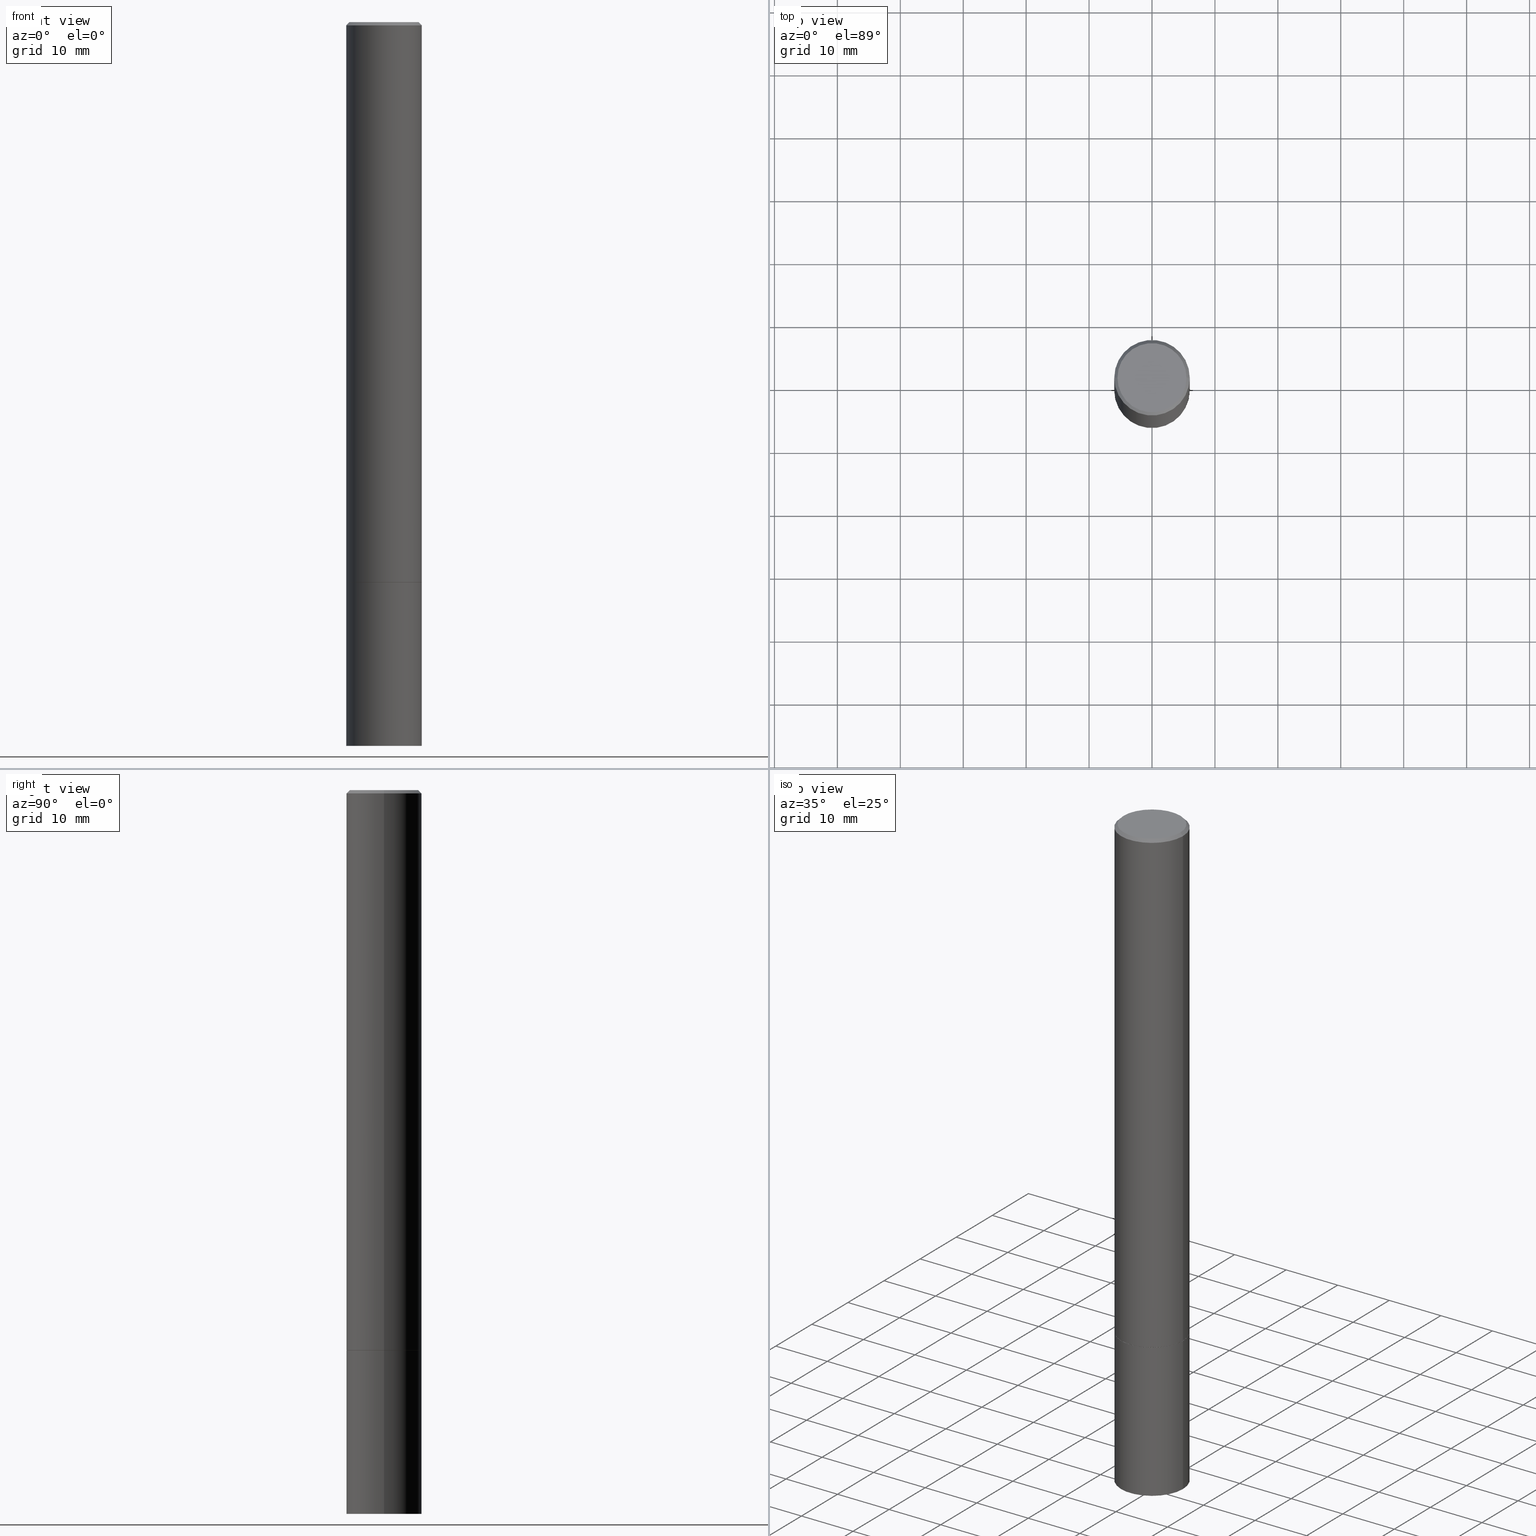
[diagram: canonical four-view strip — front | top / right | iso, engineering-drawing reading convention]
A machine part, canonical four-view strip (front | top / right | iso — engineering-drawing reading convention). The complete STEP part file that produces these views, byte-faithful:
ISO-10303-21;
HEADER;
FILE_DESCRIPTION (( 'STEP AP203' ),
    '1' );
FILE_NAME ('46143.STEP',
    '2024-02-28T10:11:00',
    ( '' ),
    ( '' ),
    'SwSTEP 2.0',
    'SolidWorks 2023',
    '' );
FILE_SCHEMA (( 'CONFIG_CONTROL_DESIGN' ));
ENDSEC;

DATA;
#1 = APPROVAL_DATE_TIME ( #280, #300 ) ;
#2 = EDGE_LOOP ( 'NONE', ( #341, #342, #78, #170 ) ) ;
#3 = APPLICATION_PROTOCOL_DEFINITION ( 'international standard', 'config_control_design', 1994, #32 ) ;
#4 = DATE_AND_TIME ( #35, #288 ) ;
#5 = EDGE_CURVE ( 'NONE', #55, #123, #211, .T. ) ;
#6 = AXIS2_PLACEMENT_3D ( 'NONE', #263, #88, #339 ) ;
#7 = LINE ( 'NONE', #111, #307 ) ;
#8 = PERSON_AND_ORGANIZATION ( #62, #16 ) ;
#9 = AXIS2_PLACEMENT_3D ( 'NONE', #294, #138, #312 ) ;
#10 = FACE_OUTER_BOUND ( 'NONE', #305, .T. ) ;
#11 = DIRECTION ( 'NONE',  ( 1.000000000000000000, -6.982962677686266711E-15, 4.876176775795936353E-29 ) ) ;
#12 = EDGE_CURVE ( 'NONE', #55, #101, #13, .T. ) ;
#13 = CIRCLE ( 'NONE', #124, 0.2161999999999995037 ) ;
#14 = CIRCLE ( 'NONE', #133, 0.2361999999999999933 ) ;
#15 = CARTESIAN_POINT ( 'NONE',  ( -0.2361999999999999933, -1.234278881866094703E-14, -4.527599999999999625 ) ) ;
#16 = ORGANIZATION ( 'UNSPECIFIED', 'UNSPECIFIED', '' ) ;
#17 = LOCAL_TIME ( 5, 11, 0.000000000000000000, #96 ) ;
#18 = CIRCLE ( 'NONE', #33, 0.2351999999999999924 ) ;
#19 = DIRECTION ( 'NONE',  ( 2.438088387897960049E-29, -3.491481338843145188E-15, -1.000000000000000000 ) ) ;
#20 = PRODUCT_DEFINITION_SHAPE ( 'NONE', 'NONE',  #217 ) ;
#21 = DIRECTION ( 'NONE',  ( -2.445468806185136877E-29, 3.491481338843145188E-15, 1.000000000000000000 ) ) ;
#22 = EDGE_CURVE ( 'NONE', #337, #127, #65, .T. ) ;
#23 = ORIENTED_EDGE ( 'NONE', *, *, #5, .T. ) ;
#24 = EDGE_LOOP ( 'NONE', ( #275, #115, #252, #57 ) ) ;
#25 = EDGE_CURVE ( 'NONE', #357, #364, #7, .T. ) ;
#26 = AXIS2_PLACEMENT_3D ( 'NONE', #190, #330, #298 ) ;
#27 = ORIENTED_EDGE ( 'NONE', *, *, #247, .F. ) ;
#28 = CARTESIAN_POINT ( 'NONE',  ( 1.107210456688382298E-28, -1.580803090974622389E-14, -4.527599999999999625 ) ) ;
#29 = EDGE_LOOP ( 'NONE', ( #274, #135, #60, #301 ) ) ;
#30 = CARTESIAN_POINT ( 'NONE',  ( 8.568922696872717137E-29, -1.223415061130638137E-14, -3.503999999999999559 ) ) ;
#31 = PERSON_AND_ORGANIZATION ( #62, #16 ) ;
#32 = APPLICATION_CONTEXT ( 'configuration controlled 3d designs of mechanical parts and assemblies' ) ;
#33 = AXIS2_PLACEMENT_3D ( 'NONE', #249, #195, #333 ) ;
#34 = DIRECTION ( 'NONE',  ( 1.000000000000000000, -6.982962677686268288E-15, 0.000000000000000000 ) ) ;
#35 = CALENDAR_DATE ( 2024, 28, 2 ) ;
#36 = ADVANCED_FACE ( 'NONE', ( #69 ), #208, .T. ) ;
#37 = APPROVAL_ROLE ( '' ) ;
#38 = CARTESIAN_POINT ( 'NONE',  ( 0.000000000000000000, 0.000000000000000000, 0.000000000000000000 ) ) ;
#39 = AXIS2_PLACEMENT_3D ( 'NONE', #180, #142, #265 ) ;
#40 = CARTESIAN_POINT ( 'NONE',  ( -0.2361999999999995214, 1.579546157692629677E-15, -0.02000000000000006287 ) ) ;
#41 = FACE_OUTER_BOUND ( 'NONE', #299, .T. ) ;
#42 = LOCAL_TIME ( 5, 11, 0.000000000000000000, #141 ) ;
#43 = LINE ( 'NONE', #97, #351 ) ;
#44 = CONICAL_SURFACE ( 'NONE', #277, 0.2351999999999999924, 0.7853981633975507526 ) ;
#45 = DIRECTION ( 'NONE',  ( -2.445468806185136877E-29, 3.491481338843145188E-15, 1.000000000000000000 ) ) ;
#46 = CC_DESIGN_PERSON_AND_ORGANIZATION_ASSIGNMENT ( #8, #108, ( #217 ) ) ;
#47 = CYLINDRICAL_SURFACE ( 'NONE', #201, 0.2361999999999999933 ) ;
#48 = DIRECTION ( 'NONE',  ( 1.000000000000000000, -6.982962677686265133E-15, 0.000000000000000000 ) ) ;
#49 = DIRECTION ( 'NONE',  ( 0.7071067811865467956, -7.319954787623254468E-15, -0.7071067811865482389 ) ) ;
#50 = CLOSED_SHELL ( 'NONE', ( #347, #233, #191, #71 ) ) ;
#51 = FACE_OUTER_BOUND ( 'NONE', #221, .T. ) ;
#52 = ORIENTED_EDGE ( 'NONE', *, *, #25, .F. ) ;
#53 = UNCERTAINTY_MEASURE_WITH_UNIT (LENGTH_MEASURE( 1.000000000000000082E-05 ), #314, 'distance_accuracy_value', 'NONE');
#54 = LINE ( 'NONE', #79, #205 ) ;
#55 = VERTEX_POINT ( 'NONE', #353 ) ;
#56 = FACE_OUTER_BOUND ( 'NONE', #125, .T. ) ;
#57 = ORIENTED_EDGE ( 'NONE', *, *, #268, .F. ) ;
#58 = APPROVAL_ROLE ( '' ) ;
#59 = CARTESIAN_POINT ( 'NONE',  ( 1.649375784469581525E-15, 0.2361999999999877808, -3.504000000000000448 ) ) ;
#60 = ORIENTED_EDGE ( 'NONE', *, *, #247, .T. ) ;
#61 = PERSON_AND_ORGANIZATION ( #62, #16 ) ;
#62 = PERSON ( 'UNSPECIFIED', 'UNSPECIFIED', 'UNSPECIFIED', ('UNSPECIFIED'), ('UNSPECIFIED'), ('UNSPECIFIED') ) ;
#63 = SECURITY_CLASSIFICATION_LEVEL ( 'unclassified' ) ;
#64 = DIRECTION ( 'NONE',  ( 1.000000000000000000, -6.982962677686265133E-15, 0.000000000000000000 ) ) ;
#65 = CIRCLE ( 'NONE', #269, 0.2351999999999999924 ) ;
#66 = FACE_OUTER_BOUND ( 'NONE', #279, .T. ) ;
#67 = CARTESIAN_POINT ( 'NONE',  ( 0.2351999999999999924, -1.387654343309819188E-14, -3.503999999999999559 ) ) ;
#68 = DIRECTION ( 'NONE',  ( 1.000000000000000000, -6.982962677686265133E-15, 0.000000000000000000 ) ) ;
#69 = FACE_OUTER_BOUND ( 'NONE', #24, .T. ) ;
#70 = PRODUCT_DEFINITION_FORMATION_WITH_SPECIFIED_SOURCE ( 'ANY', '', #271, .NOT_KNOWN. ) ;
#71 = ADVANCED_FACE ( 'NONE', ( #267 ), #47, .T. ) ;
#72 = ADVANCED_FACE ( 'NONE', ( #95 ), #213, .T. ) ;
#73 = VECTOR ( 'NONE', #317, 39.37007874015748143 ) ;
#74 = DIRECTION ( 'NONE',  ( -2.445468806185136597E-29, 3.491481338843145583E-15, 1.000000000000000000 ) ) ;
#75 = CARTESIAN_POINT ( 'NONE',  ( 1.649375784469606571E-15, 0.2361999999999841726, -4.527600000000000513 ) ) ;
#76 = CC_DESIGN_PERSON_AND_ORGANIZATION_ASSIGNMENT ( #174, #284, ( #157 ) ) ;
#77 = ORIENTED_EDGE ( 'NONE', *, *, #22, .F. ) ;
#78 = ORIENTED_EDGE ( 'NONE', *, *, #182, .T. ) ;
#79 = CARTESIAN_POINT ( 'NONE',  ( 0.2361999999999999933, -1.649375784469496131E-15, 1.151752954443000088E-29 ) ) ;
#80 = ORIENTED_EDGE ( 'NONE', *, *, #182, .F. ) ;
#81 = CALENDAR_DATE ( 2024, 28, 2 ) ;
#82 = VERTEX_POINT ( 'NONE', #204 ) ;
#83 = CONICAL_SURFACE ( 'NONE', #322, 0.2351999999999999924, 0.7853981633975507526 ) ;
#84 = AXIS2_PLACEMENT_3D ( 'NONE', #75, #192, #224 ) ;
#85 = APPROVAL_STATUS ( 'not_yet_approved' ) ;
#86 = DATE_TIME_ROLE ( 'classification_date' ) ;
#87 = AXIS2_PLACEMENT_3D ( 'NONE', #363, #169, #281 ) ;
#88 = DIRECTION ( 'NONE',  ( 0.000000000000000000, 0.000000000000000000, 1.000000000000000000 ) ) ;
#89 = CARTESIAN_POINT ( 'NONE',  ( -0.2361999999999997712, 1.678301941865355014E-15, -1.161852468318207636E-29 ) ) ;
#90 = CARTESIAN_POINT ( 'NONE',  ( 0.2161999999999995037, -1.586759460484348635E-15, 4.268512490111238857E-18 ) ) ;
#91 = CARTESIAN_POINT ( 'NONE',  ( 0.2361999999999995214, -1.690279253850495418E-15, -0.02000000000000006287 ) ) ;
#92 = DIRECTION ( 'NONE',  ( -0.7071067811865467956, 2.468850131082249172E-15, -0.7071067811865482389 ) ) ;
#93 = AXIS2_PLACEMENT_3D ( 'NONE', #216, #325, #350 ) ;
#94 = DIRECTION ( 'NONE',  ( -2.445468806185136597E-29, 3.491481338843145583E-15, 1.000000000000000000 ) ) ;
#95 = FACE_OUTER_BOUND ( 'NONE', #310, .T. ) ;
#96 = COORDINATED_UNIVERSAL_TIME_OFFSET ( 5, 0, .BEHIND. ) ;
#97 = CARTESIAN_POINT ( 'NONE',  ( -0.2361999999999999933, 1.678301941865356591E-15, -1.161852468318208757E-29 ) ) ;
#98 = ORIENTED_EDGE ( 'NONE', *, *, #172, .F. ) ;
#99 = ADVANCED_FACE ( 'NONE', ( #66 ), #207, .F. ) ;
#100 = DIRECTION ( 'NONE',  ( -2.445468806185136597E-29, 3.491481338843145583E-15, 1.000000000000000000 ) ) ;
#101 = VERTEX_POINT ( 'NONE', #90 ) ;
#102 = CC_DESIGN_PERSON_AND_ORGANIZATION_ASSIGNMENT ( #345, #311, ( #70 ) ) ;
#103 = VECTOR ( 'NONE', #49, 39.37007874015748143 ) ;
#104 = DIRECTION ( 'NONE',  ( -2.445468806185136597E-29, 3.491481338843145583E-15, 1.000000000000000000 ) ) ;
#105 = ORIENTED_EDGE ( 'NONE', *, *, #117, .T. ) ;
#106 = ORIENTED_EDGE ( 'NONE', *, *, #12, .T. ) ;
#107 = CC_DESIGN_PERSON_AND_ORGANIZATION_ASSIGNMENT ( #316, #258, ( #271 ) ) ;
#108 = PERSON_AND_ORGANIZATION_ROLE ( 'creator' ) ;
#109 = DIRECTION ( 'NONE',  ( -2.445468806185136597E-29, 3.491481338843145583E-15, 1.000000000000000000 ) ) ;
#110 = CIRCLE ( 'NONE', #297, 0.2361999999999999933 ) ;
#111 = CARTESIAN_POINT ( 'NONE',  ( 0.2361999999999997712, -1.649375784469494553E-15, 1.151752954442998827E-29 ) ) ;
#112 = DIRECTION ( 'NONE',  ( -2.445468806185136877E-29, 3.491481338843145188E-15, 1.000000000000000000 ) ) ;
#113 = AXIS2_PLACEMENT_3D ( 'NONE', #38, #145, #146 ) ;
#114 = COORDINATED_UNIVERSAL_TIME_OFFSET ( 5, 0, .BEHIND. ) ;
#115 = ORIENTED_EDGE ( 'NONE', *, *, #360, .T. ) ;
#116 = EDGE_CURVE ( 'NONE', #359, #163, #110, .T. ) ;
#117 = EDGE_CURVE ( 'NONE', #136, #123, #184, .T. ) ;
#118 = CARTESIAN_POINT ( 'NONE',  ( 8.566477228066533777E-29, -1.223065912996753836E-14, -3.502999999999999670 ) ) ;
#119 = CC_DESIGN_APPROVAL ( #197, ( #217 ) ) ;
#120 = CIRCLE ( 'NONE', #349, 0.2361999999999999933 ) ;
#121 = CARTESIAN_POINT ( 'NONE',  ( 0.2361999999999995214, -1.690279253850495418E-15, -0.02000000000000006287 ) ) ;
#122 = APPROVAL_PERSON_ORGANIZATION ( #199, #300, #58 ) ;
#123 = VERTEX_POINT ( 'NONE', #40 ) ;
#124 = AXIS2_PLACEMENT_3D ( 'NONE', #177, #181, #319 ) ;
#125 = EDGE_LOOP ( 'NONE', ( #98, #140, #23, #229 ) ) ;
#126 = DIRECTION ( 'NONE',  ( 1.000000000000000000, -6.982962677686268288E-15, 0.000000000000000000 ) ) ;
#127 = VERTEX_POINT ( 'NONE', #309 ) ;
#128 = DIRECTION ( 'NONE',  ( -2.445468806185136597E-29, 3.491481338843145583E-15, 1.000000000000000000 ) ) ;
#129 = ORIENTED_EDGE ( 'NONE', *, *, #242, .F. ) ;
#130 = LINE ( 'NONE', #67, #315 ) ;
#131 = AXIS2_PLACEMENT_3D ( 'NONE', #232, #225, #218 ) ;
#132 = ORIENTED_EDGE ( 'NONE', *, *, #183, .T. ) ;
#133 = AXIS2_PLACEMENT_3D ( 'NONE', #118, #241, #185 ) ;
#134 =( NAMED_UNIT ( * ) PLANE_ANGLE_UNIT ( ) SI_UNIT ( $, .RADIAN. ) );
#135 = ORIENTED_EDGE ( 'NONE', *, *, #172, .T. ) ;
#136 = VERTEX_POINT ( 'NONE', #239 ) ;
#137 = PERSON_AND_ORGANIZATION_ROLE ( 'creator' ) ;
#138 = DIRECTION ( 'NONE',  ( -2.445468806185136597E-29, 3.491481338843145583E-15, 1.000000000000000000 ) ) ;
#139 = CONICAL_SURFACE ( 'NONE', #131, 0.2361999999999995214, 0.7853981633974472798 ) ;
#140 = ORIENTED_EDGE ( 'NONE', *, *, #12, .F. ) ;
#141 = COORDINATED_UNIVERSAL_TIME_OFFSET ( 5, 0, .BEHIND. ) ;
#142 = DIRECTION ( 'NONE',  ( 2.438088387897960049E-29, -3.491481338843145188E-15, -1.000000000000000000 ) ) ;
#143 = DIRECTION ( 'NONE',  ( 1.000000000000000000, -6.982962677686265922E-15, 4.876176775795935793E-29 ) ) ;
#144 = COORDINATED_UNIVERSAL_TIME_OFFSET ( 5, 0, .BEHIND. ) ;
#145 = DIRECTION ( 'NONE',  ( -2.445468806185136597E-29, 3.491481338843145583E-15, 1.000000000000000000 ) ) ;
#146 = DIRECTION ( 'NONE',  ( 1.000000000000000000, -6.982962677686266711E-15, 4.876176775795935232E-29 ) ) ;
#147 = ADVANCED_BREP_SHAPE_REPRESENTATION ( '46143', ( #175, #171, #6 ), #236 ) ;
#148 = DATE_AND_TIME ( #151, #17 ) ;
#149 =( LENGTH_UNIT ( ) NAMED_UNIT ( * ) SI_UNIT ( $, .METRE. ) );
#150 = CC_DESIGN_SECURITY_CLASSIFICATION ( #157, ( #70 ) ) ;
#151 = CALENDAR_DATE ( 2024, 28, 2 ) ;
#152 = CLOSED_SHELL ( 'NONE', ( #304, #72, #327, #264, #36, #323, #162, #99 ) ) ;
#153 = EDGE_CURVE ( 'NONE', #101, #55, #290, .T. ) ;
#154 = AXIS2_PLACEMENT_3D ( 'NONE', #292, #94, #11 ) ;
#155 = APPROVAL_DATE_TIME ( #148, #187 ) ;
#156 = CARTESIAN_POINT ( 'NONE',  ( 0.2361999999999999933, -1.388003491443703489E-14, -3.502999999999999670 ) ) ;
#157 = SECURITY_CLASSIFICATION ( '', '', #63 ) ;
#158 = FACE_OUTER_BOUND ( 'NONE', #2, .T. ) ;
#159 = CARTESIAN_POINT ( 'NONE',  ( 8.568922696872717137E-29, -1.223415061130638137E-14, -3.503999999999999559 ) ) ;
#160 = VERTEX_POINT ( 'NONE', #295 ) ;
#161 = CARTESIAN_POINT ( 'NONE',  ( 4.890937612370288923E-31, -6.982962677686312563E-17, -0.02000000000000006287 ) ) ;
#162 = ADVANCED_FACE ( 'NONE', ( #41 ), #318, .F. ) ;
#163 = VERTEX_POINT ( 'NONE', #329 ) ;
#164 = DESIGN_CONTEXT ( 'detailed design', #32, 'design' ) ;
#165 = ORIENTED_EDGE ( 'NONE', *, *, #116, .T. ) ;
#166 = ORIENTED_EDGE ( 'NONE', *, *, #335, .T. ) ;
#167 = ORIENTED_EDGE ( 'NONE', *, *, #183, .F. ) ;
#168 = CALENDAR_DATE ( 2024, 28, 2 ) ;
#169 = DIRECTION ( 'NONE',  ( 2.445468806185136597E-29, -3.491481338843145583E-15, -1.000000000000000000 ) ) ;
#170 = ORIENTED_EDGE ( 'NONE', *, *, #360, .F. ) ;
#171 = MANIFOLD_SOLID_BREP ( 'Body-Move/Copy2[2]', #152 ) ;
#172 = EDGE_CURVE ( 'NONE', #101, #364, #230, .T. ) ;
#173 = ORIENTED_EDGE ( 'NONE', *, *, #237, .T. ) ;
#174 = PERSON_AND_ORGANIZATION ( #62, #16 ) ;
#175 = MANIFOLD_SOLID_BREP ( 'Body-Move/Copy2[1]', #50 ) ;
#176 = VECTOR ( 'NONE', #92, 39.37007874015748143 ) ;
#177 = CARTESIAN_POINT ( 'NONE',  ( -1.043851414335219820E-46, 1.490343170380447200E-32, 4.268512490100411279E-18 ) ) ;
#178 = CC_DESIGN_PERSON_AND_ORGANIZATION_ASSIGNMENT ( #61, #137, ( #70 ) ) ;
#179 = PERSON_AND_ORGANIZATION ( #62, #16 ) ;
#180 = CARTESIAN_POINT ( 'NONE',  ( 1.509716530915767168E-15, 0.2161999999999995037, -7.527240092128361316E-16 ) ) ;
#181 = DIRECTION ( 'NONE',  ( -2.445468806185136597E-29, 3.491481338843145583E-15, 1.000000000000000000 ) ) ;
#182 = EDGE_CURVE ( 'NONE', #127, #357, #130, .T. ) ;
#183 = EDGE_CURVE ( 'NONE', #127, #337, #18, .T. ) ;
#184 = LINE ( 'NONE', #89, #73 ) ;
#185 = DIRECTION ( 'NONE',  ( 1.000000000000000000, -6.982962677686265133E-15, 0.000000000000000000 ) ) ;
#186 = CARTESIAN_POINT ( 'NONE',  ( 0.000000000000000000, 0.000000000000000000, 0.000000000000000000 ) ) ;
#187 = APPROVAL ( #286, 'UNSPECIFIED' ) ;
#188 = DIRECTION ( 'NONE',  ( 1.000000000000000000, -6.982962677686266711E-15, 4.876176775795936353E-29 ) ) ;
#189 = AXIS2_PLACEMENT_3D ( 'NONE', #328, #100, #64 ) ;
#190 = CARTESIAN_POINT ( 'NONE',  ( 8.568922696872717137E-29, -1.223415061130638137E-14, -3.503999999999999559 ) ) ;
#191 = ADVANCED_FACE ( 'NONE', ( #220 ), #365, .F. ) ;
#192 = DIRECTION ( 'NONE',  ( 2.438088387897960049E-29, -3.491481338843145188E-15, -1.000000000000000000 ) ) ;
#193 = ORIENTED_EDGE ( 'NONE', *, *, #354, .F. ) ;
#194 = ORIENTED_EDGE ( 'NONE', *, *, #215, .T. ) ;
#195 = DIRECTION ( 'NONE',  ( -2.445468806185136597E-29, 3.491481338843145583E-15, 1.000000000000000000 ) ) ;
#196 = EDGE_LOOP ( 'NONE', ( #255, #166 ) ) ;
#197 = APPROVAL ( #85, 'UNSPECIFIED' ) ;
#198 = LINE ( 'NONE', #355, #248 ) ;
#199 = PERSON_AND_ORGANIZATION ( #62, #16 ) ;
#200 = ORIENTED_EDGE ( 'NONE', *, *, #242, .T. ) ;
#201 = AXIS2_PLACEMENT_3D ( 'NONE', #186, #244, #188 ) ;
#202 = APPLICATION_PROTOCOL_DEFINITION ( 'international standard', 'config_control_design', 1994, #344 ) ;
#203 = DATE_AND_TIME ( #81, #289 ) ;
#204 = CARTESIAN_POINT ( 'NONE',  ( 0.2361999999999999933, -1.388352639577587632E-14, -3.503999999999999559 ) ) ;
#205 = VECTOR ( 'NONE', #21, 39.37007874015748143 ) ;
#206 = MECHANICAL_CONTEXT ( 'NONE', #344, 'mechanical' ) ;
#207 = PLANE ( 'NONE',  #39 ) ;
#208 = CYLINDRICAL_SURFACE ( 'NONE', #113, 0.2361999999999997712 ) ;
#209 = DIRECTION ( 'NONE',  ( -2.445468806185136597E-29, 3.491481338843145583E-15, 1.000000000000000000 ) ) ;
#210 = APPROVAL_PERSON_ORGANIZATION ( #31, #197, #37 ) ;
#211 = LINE ( 'NONE', #313, #176 ) ;
#212 = CONICAL_SURFACE ( 'NONE', #87, 0.2361999999999995214, 0.7853981633974472798 ) ;
#213 = CYLINDRICAL_SURFACE ( 'NONE', #9, 0.2361999999999997712 ) ;
#214 = AXIS2_PLACEMENT_3D ( 'NONE', #219, #338, #143 ) ;
#215 = EDGE_CURVE ( 'NONE', #337, #136, #198, .T. ) ;
#216 = CARTESIAN_POINT ( 'NONE',  ( -1.043851414335219820E-46, 1.490343170380447200E-32, 4.268512490100411279E-18 ) ) ;
#217 = PRODUCT_DEFINITION ( 'UNKNOWN', '', #70, #164 ) ;
#218 = DIRECTION ( 'NONE',  ( -1.000000000000000000, 6.982962677686266711E-15, 0.000000000000000000 ) ) ;
#219 = CARTESIAN_POINT ( 'NONE',  ( 8.568922696872717137E-29, -1.223415061130638137E-14, -3.503999999999999559 ) ) ;
#220 = FACE_OUTER_BOUND ( 'NONE', #196, .T. ) ;
#221 = EDGE_LOOP ( 'NONE', ( #132, #194, #276, #80 ) ) ;
#222 = EDGE_CURVE ( 'NONE', #82, #160, #361, .T. ) ;
#223 = CC_DESIGN_APPROVAL ( #187, ( #157 ) ) ;
#224 = DIRECTION ( 'NONE',  ( -1.000000000000000000, 6.982962677686265922E-15, -4.876176775795935793E-29 ) ) ;
#225 = DIRECTION ( 'NONE',  ( 2.445468806185136597E-29, -3.491481338843145583E-15, -1.000000000000000000 ) ) ;
#226 = DIRECTION ( 'NONE',  ( -1.000000000000000000, 6.982962677686265922E-15, -4.876176775795935793E-29 ) ) ;
#227 = PRODUCT_RELATED_PRODUCT_CATEGORY ( 'detail', '', ( #271 ) ) ;
#228 = DIRECTION ( 'NONE',  ( 1.000000000000000000, -6.982962677686266711E-15, 0.000000000000000000 ) ) ;
#229 = ORIENTED_EDGE ( 'NONE', *, *, #268, .T. ) ;
#230 = LINE ( 'NONE', #91, #103 ) ;
#231 = APPROVAL_PERSON_ORGANIZATION ( #179, #187, #240 ) ;
#232 = CARTESIAN_POINT ( 'NONE',  ( 4.890937612370288923E-31, -6.982962677686312563E-17, -0.02000000000000006287 ) ) ;
#233 = ADVANCED_FACE ( 'NONE', ( #251 ), #336, .T. ) ;
#234 = AXIS2_PLACEMENT_3D ( 'NONE', #161, #104, #340 ) ;
#235 = APPROVAL_STATUS ( 'not_yet_approved' ) ;
#236 =( GEOMETRIC_REPRESENTATION_CONTEXT ( 3 ) GLOBAL_UNCERTAINTY_ASSIGNED_CONTEXT ( ( #53 ) ) GLOBAL_UNIT_ASSIGNED_CONTEXT ( ( #314, #134, #259 ) ) REPRESENTATION_CONTEXT ( 'NONE', 'WORKASPACE' ) );
#237 = EDGE_CURVE ( 'NONE', #163, #82, #54, .T. ) ;
#238 = CARTESIAN_POINT ( 'NONE',  ( 1.107210456688382298E-28, -1.580803090974622389E-14, -4.527599999999999625 ) ) ;
#239 = CARTESIAN_POINT ( 'NONE',  ( -0.2362000000000000210, -4.471942436506837337E-15, -3.502999999999999670 ) ) ;
#240 = APPROVAL_ROLE ( '' ) ;
#241 = DIRECTION ( 'NONE',  ( -2.445468806185136597E-29, 3.491481338843145583E-15, 1.000000000000000000 ) ) ;
#242 = EDGE_CURVE ( 'NONE', #163, #359, #120, .T. ) ;
#243 = CIRCLE ( 'NONE', #234, 0.2361999999999995214 ) ;
#244 = DIRECTION ( 'NONE',  ( -2.445468806185136597E-29, 3.491481338843145583E-15, 1.000000000000000000 ) ) ;
#245 = SHAPE_DEFINITION_REPRESENTATION ( #20, #147 ) ;
#246 = CARTESIAN_POINT ( 'NONE',  ( -0.2351999999999999924, -1.055765564245040437E-14, -3.503999999999999559 ) ) ;
#247 = EDGE_CURVE ( 'NONE', #364, #123, #332, .T. ) ;
#248 = VECTOR ( 'NONE', #296, 39.37007874015748143 ) ;
#249 = CARTESIAN_POINT ( 'NONE',  ( 8.568922696872717137E-29, -1.223415061130638137E-14, -3.503999999999999559 ) ) ;
#250 = ORIENTED_EDGE ( 'NONE', *, *, #321, .T. ) ;
#251 = FACE_OUTER_BOUND ( 'NONE', #303, .T. ) ;
#252 = ORIENTED_EDGE ( 'NONE', *, *, #25, .T. ) ;
#253 = CC_DESIGN_DATE_AND_TIME_ASSIGNMENT ( #4, #86, ( #157 ) ) ;
#254 = CIRCLE ( 'NONE', #291, 0.2361999999999999933 ) ;
#255 = ORIENTED_EDGE ( 'NONE', *, *, #222, .T. ) ;
#256 = DIRECTION ( 'NONE',  ( 1.000000000000000000, -6.982962677686265133E-15, 0.000000000000000000 ) ) ;
#257 = ORIENTED_EDGE ( 'NONE', *, *, #335, .F. ) ;
#258 = PERSON_AND_ORGANIZATION_ROLE ( 'design_owner' ) ;
#259 =( NAMED_UNIT ( * ) SI_UNIT ( $, .STERADIAN. ) SOLID_ANGLE_UNIT ( ) );
#260 = EDGE_LOOP ( 'NONE', ( #193, #165, #173, #257 ) ) ;
#261 = COORDINATED_UNIVERSAL_TIME_OFFSET ( 5, 0, .BEHIND. ) ;
#262 = DIRECTION ( 'NONE',  ( -2.445468806185136597E-29, 3.491481338843145583E-15, 1.000000000000000000 ) ) ;
#263 = CARTESIAN_POINT ( 'NONE',  ( 0.000000000000000000, 0.000000000000000000, 0.000000000000000000 ) ) ;
#264 = ADVANCED_FACE ( 'NONE', ( #56 ), #212, .T. ) ;
#265 = DIRECTION ( 'NONE',  ( -1.000000000000000000, 6.982962677686265922E-15, -4.876176775795935793E-29 ) ) ;
#266 = CALENDAR_DATE ( 2024, 28, 2 ) ;
#267 = FACE_OUTER_BOUND ( 'NONE', #260, .T. ) ;
#268 = EDGE_CURVE ( 'NONE', #123, #364, #243, .T. ) ;
#269 = AXIS2_PLACEMENT_3D ( 'NONE', #287, #262, #34 ) ;
#270 = DIMENSIONAL_EXPONENTS ( 1.000000000000000000, 0.000000000000000000, 0.000000000000000000, 0.000000000000000000, 0.000000000000000000, 0.000000000000000000, 0.000000000000000000 ) ;
#271 = PRODUCT ( '46143', '46143', '', ( #206 ) ) ;
#272 = CARTESIAN_POINT ( 'NONE',  ( 8.566477228066533777E-29, -1.223065912996753836E-14, -3.502999999999999670 ) ) ;
#273 = DIRECTION ( 'NONE',  ( -2.445468806185136597E-29, 3.491481338843145583E-15, 1.000000000000000000 ) ) ;
#274 = ORIENTED_EDGE ( 'NONE', *, *, #153, .F. ) ;
#275 = ORIENTED_EDGE ( 'NONE', *, *, #117, .F. ) ;
#276 = ORIENTED_EDGE ( 'NONE', *, *, #321, .F. ) ;
#277 = AXIS2_PLACEMENT_3D ( 'NONE', #30, #109, #326 ) ;
#278 = CARTESIAN_POINT ( 'NONE',  ( 4.890937612370288923E-31, -6.982962677686312563E-17, -0.02000000000000006287 ) ) ;
#279 = EDGE_LOOP ( 'NONE', ( #106, #334 ) ) ;
#280 = DATE_AND_TIME ( #168, #42 ) ;
#281 = DIRECTION ( 'NONE',  ( -1.000000000000000000, 6.982962677686266711E-15, 0.000000000000000000 ) ) ;
#282 = ORIENTED_EDGE ( 'NONE', *, *, #222, .F. ) ;
#283 = DATE_TIME_ROLE ( 'creation_date' ) ;
#284 = PERSON_AND_ORGANIZATION_ROLE ( 'classification_officer' ) ;
#285 = AXIS2_PLACEMENT_3D ( 'NONE', #59, #19, #226 ) ;
#286 = APPROVAL_STATUS ( 'not_yet_approved' ) ;
#287 = CARTESIAN_POINT ( 'NONE',  ( 8.568922696872717137E-29, -1.223415061130638137E-14, -3.503999999999999559 ) ) ;
#288 = LOCAL_TIME ( 5, 11, 0.000000000000000000, #261 ) ;
#289 = LOCAL_TIME ( 5, 11, 0.000000000000000000, #114 ) ;
#290 = CIRCLE ( 'NONE', #93, 0.2161999999999995037 ) ;
#291 = AXIS2_PLACEMENT_3D ( 'NONE', #272, #74, #48 ) ;
#292 = CARTESIAN_POINT ( 'NONE',  ( 0.000000000000000000, 0.000000000000000000, 0.000000000000000000 ) ) ;
#293 = CIRCLE ( 'NONE', #189, 0.2361999999999999933 ) ;
#294 = CARTESIAN_POINT ( 'NONE',  ( 0.000000000000000000, 0.000000000000000000, 0.000000000000000000 ) ) ;
#295 = CARTESIAN_POINT ( 'NONE',  ( -0.2361999999999999933, -1.234278881866094703E-14, -3.503999999999999559 ) ) ;
#296 = DIRECTION ( 'NONE',  ( -0.7071067811866199593, 7.493145998870616062E-15, 0.7071067811864750752 ) ) ;
#297 = AXIS2_PLACEMENT_3D ( 'NONE', #238, #209, #68 ) ;
#298 = DIRECTION ( 'NONE',  ( 1.000000000000000000, -6.982962677686265133E-15, 0.000000000000000000 ) ) ;
#299 = EDGE_LOOP ( 'NONE', ( #167, #77 ) ) ;
#300 = APPROVAL ( #235, 'UNSPECIFIED' ) ;
#301 = ORIENTED_EDGE ( 'NONE', *, *, #5, .F. ) ;
#302 = DIRECTION ( 'NONE',  ( -2.445468806185136597E-29, 3.491481338843145583E-15, 1.000000000000000000 ) ) ;
#303 = EDGE_LOOP ( 'NONE', ( #129, #356 ) ) ;
#304 = ADVANCED_FACE ( 'NONE', ( #51 ), #44, .T. ) ;
#305 = EDGE_LOOP ( 'NONE', ( #200, #331, #282, #366 ) ) ;
#306 = LOCAL_TIME ( 5, 11, 0.000000000000000000, #144 ) ;
#307 = VECTOR ( 'NONE', #112, 39.37007874015748143 ) ;
#308 = DATE_AND_TIME ( #266, #306 ) ;
#309 = CARTESIAN_POINT ( 'NONE',  ( 0.2351999999999999924, -1.387654343309819188E-14, -3.503999999999999559 ) ) ;
#310 = EDGE_LOOP ( 'NONE', ( #250, #105, #27, #52 ) ) ;
#311 = PERSON_AND_ORGANIZATION_ROLE ( 'design_supplier' ) ;
#312 = DIRECTION ( 'NONE',  ( 1.000000000000000000, -6.982962677686266711E-15, 4.876176775795935232E-29 ) ) ;
#313 = CARTESIAN_POINT ( 'NONE',  ( -0.2361999999999995214, 1.579546157692629677E-15, -0.02000000000000006287 ) ) ;
#314 =( CONVERSION_BASED_UNIT ( 'INCH', #362 ) LENGTH_UNIT ( ) NAMED_UNIT ( #270 ) );
#315 = VECTOR ( 'NONE', #324, 39.37007874015748143 ) ;
#316 = PERSON_AND_ORGANIZATION ( #62, #16 ) ;
#317 = DIRECTION ( 'NONE',  ( -2.445468806185136877E-29, 3.491481338843145188E-15, 1.000000000000000000 ) ) ;
#318 = PLANE ( 'NONE',  #214 ) ;
#319 = DIRECTION ( 'NONE',  ( 1.000000000000000000, -6.982962677686266711E-15, 4.876217060660166886E-29 ) ) ;
#320 = CC_DESIGN_APPROVAL ( #300, ( #70 ) ) ;
#321 = EDGE_CURVE ( 'NONE', #357, #136, #254, .T. ) ;
#322 = AXIS2_PLACEMENT_3D ( 'NONE', #159, #273, #126 ) ;
#323 = ADVANCED_FACE ( 'NONE', ( #158 ), #83, .T. ) ;
#324 = DIRECTION ( 'NONE',  ( 0.7071067811866199593, -2.468850131083015945E-15, 0.7071067811864750752 ) ) ;
#325 = DIRECTION ( 'NONE',  ( -2.445468806185136597E-29, 3.491481338843145583E-15, 1.000000000000000000 ) ) ;
#326 = DIRECTION ( 'NONE',  ( 1.000000000000000000, -6.982962677686268288E-15, 0.000000000000000000 ) ) ;
#327 = ADVANCED_FACE ( 'NONE', ( #358 ), #139, .T. ) ;
#328 = CARTESIAN_POINT ( 'NONE',  ( 8.568922696872717137E-29, -1.223415061130638137E-14, -3.503999999999999559 ) ) ;
#329 = CARTESIAN_POINT ( 'NONE',  ( 0.2361999999999999933, -1.745740669421572042E-14, -4.527599999999999625 ) ) ;
#330 = DIRECTION ( 'NONE',  ( -2.445468806185136597E-29, 3.491481338843145583E-15, 1.000000000000000000 ) ) ;
#331 = ORIENTED_EDGE ( 'NONE', *, *, #354, .T. ) ;
#332 = CIRCLE ( 'NONE', #343, 0.2361999999999995214 ) ;
#333 = DIRECTION ( 'NONE',  ( 1.000000000000000000, -6.982962677686268288E-15, 0.000000000000000000 ) ) ;
#334 = ORIENTED_EDGE ( 'NONE', *, *, #153, .T. ) ;
#335 = EDGE_CURVE ( 'NONE', #160, #82, #293, .T. ) ;
#336 = PLANE ( 'NONE',  #84 ) ;
#337 = VERTEX_POINT ( 'NONE', #246 ) ;
#338 = DIRECTION ( 'NONE',  ( -2.438088387897960049E-29, 3.491481338843145188E-15, 1.000000000000000000 ) ) ;
#339 = DIRECTION ( 'NONE',  ( 1.000000000000000000, 0.000000000000000000, 0.000000000000000000 ) ) ;
#340 = DIRECTION ( 'NONE',  ( 1.000000000000000000, -6.982962677686266711E-15, 0.000000000000000000 ) ) ;
#341 = ORIENTED_EDGE ( 'NONE', *, *, #215, .F. ) ;
#342 = ORIENTED_EDGE ( 'NONE', *, *, #22, .T. ) ;
#343 = AXIS2_PLACEMENT_3D ( 'NONE', #278, #302, #228 ) ;
#344 = APPLICATION_CONTEXT ( 'configuration controlled 3d designs of mechanical parts and assemblies' ) ;
#345 = PERSON_AND_ORGANIZATION ( #62, #16 ) ;
#346 = APPROVAL_DATE_TIME ( #308, #197 ) ;
#347 = ADVANCED_FACE ( 'NONE', ( #10 ), #352, .T. ) ;
#348 = CC_DESIGN_DATE_AND_TIME_ASSIGNMENT ( #203, #283, ( #217 ) ) ;
#349 = AXIS2_PLACEMENT_3D ( 'NONE', #28, #128, #256 ) ;
#350 = DIRECTION ( 'NONE',  ( 1.000000000000000000, -6.982962677686266711E-15, 4.876217060660166886E-29 ) ) ;
#351 = VECTOR ( 'NONE', #45, 39.37007874015748143 ) ;
#352 = CYLINDRICAL_SURFACE ( 'NONE', #154, 0.2361999999999999933 ) ;
#353 = CARTESIAN_POINT ( 'NONE',  ( -0.2161999999999995037, 1.544631344304198620E-15, 4.268512490089730842E-18 ) ) ;
#354 = EDGE_CURVE ( 'NONE', #359, #160, #43, .T. ) ;
#355 = CARTESIAN_POINT ( 'NONE',  ( -0.2351999999999999924, -1.056295409679862520E-14, -3.503999999999999559 ) ) ;
#356 = ORIENTED_EDGE ( 'NONE', *, *, #116, .F. ) ;
#357 = VERTEX_POINT ( 'NONE', #156 ) ;
#358 = FACE_OUTER_BOUND ( 'NONE', #29, .T. ) ;
#359 = VERTEX_POINT ( 'NONE', #15 ) ;
#360 = EDGE_CURVE ( 'NONE', #136, #357, #14, .T. ) ;
#361 = CIRCLE ( 'NONE', #26, 0.2361999999999999933 ) ;
#362 = LENGTH_MEASURE_WITH_UNIT ( LENGTH_MEASURE( 0.02539999999999999897 ), #149 );
#363 = CARTESIAN_POINT ( 'NONE',  ( 4.890937612370288923E-31, -6.982962677686312563E-17, -0.02000000000000006287 ) ) ;
#364 = VERTEX_POINT ( 'NONE', #121 ) ;
#365 = PLANE ( 'NONE',  #285 ) ;
#366 = ORIENTED_EDGE ( 'NONE', *, *, #237, .F. ) ;
ENDSEC;
END-ISO-10303-21;
